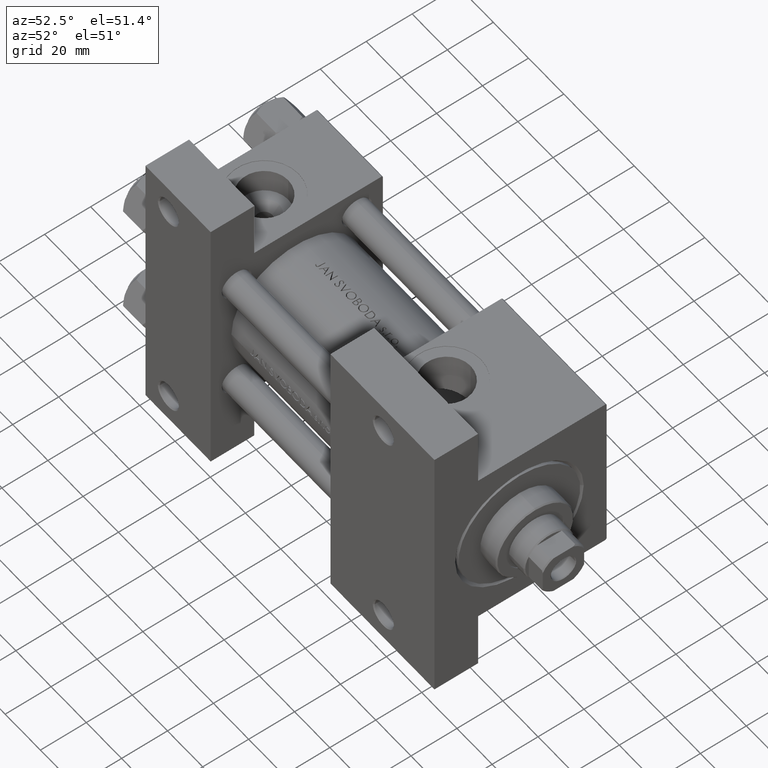
[diagram: clean part render]
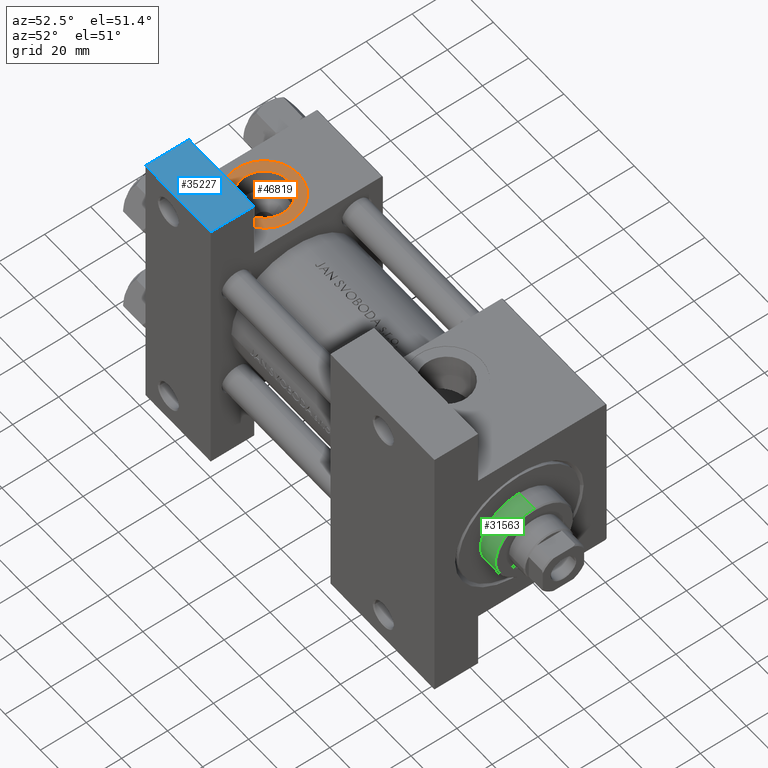
[diagram: same view with three faces highlighted in distinct colors, each labeled with its STEP entity id]
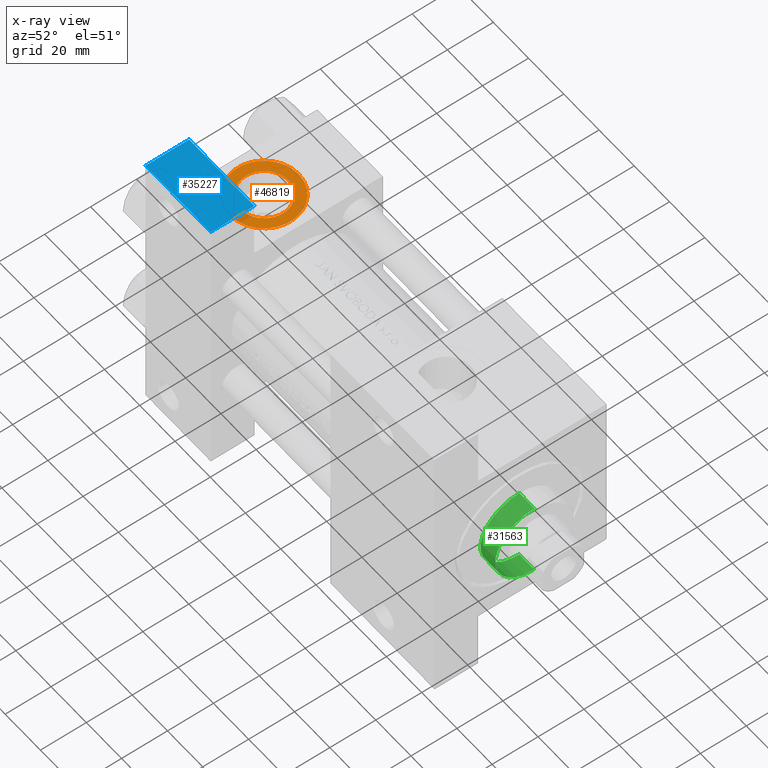
[diagram: x-ray of the same camera — body ghosted, the three highlighted faces saturated]
A machine part, auxiliary view with three faces highlighted in distinct colors.
The next image is the same camera in x-ray (body ghosted, the three faces saturated) — at least one of them is partly hidden behind the body in this view.
Their STEP definitions:

[orange] entity #46819 — the highlighted planar face has unit normal (0, -0, 1).
#68 = CIRCLE ( 'NONE', #15204, 15.00000000000000178 ) ;
#725 = FACE_BOUND ( 'NONE', #13833, .T. ) ;
#2262 = CARTESIAN_POINT ( 'NONE',  ( 18.50000000000000000, -37.30000000000000426, -3.452099717193846907E-15 ) ) ;
#2402 = AXIS2_PLACEMENT_3D ( 'NONE', #17625, #44022, #12925 ) ;
#2506 = DIRECTION ( 'NONE',  ( 0.000000000000000000, -1.000000000000000000, -8.673617379884036705E-17 ) ) ;
#2558 = EDGE_CURVE ( 'NONE', #29060, #11060, #15094, .T. ) ;
#3024 = ORIENTED_EDGE ( 'NONE', *, *, #4389, .F. ) ;
#3940 = VERTEX_POINT ( 'NONE', #21422 ) ;
#4389 = EDGE_CURVE ( 'NONE', #11060, #29060, #29479, .T. ) ;
#4718 = DIRECTION ( 'NONE',  ( 0.000000000000000000, -1.000000000000000000, -8.673617379884036705E-17 ) ) ;
#5708 = EDGE_CURVE ( 'NONE', #45179, #3940, #68, .T. ) ;
#6317 = AXIS2_PLACEMENT_3D ( 'NONE', #30194, #22962, #18986 ) ;
#7500 = CARTESIAN_POINT ( 'NONE',  ( 18.50000000000000000, -37.30000000000000426, -10.48000000000000398 ) ) ;
#8196 = DIRECTION ( 'NONE',  ( 0.000000000000000000, 8.673617379884036705E-17, -1.000000000000000000 ) ) ;
#11060 = VERTEX_POINT ( 'NONE', #32679 ) ;
#12925 = DIRECTION ( 'NONE',  ( 0.000000000000000000, 0.000000000000000000, -1.000000000000000000 ) ) ;
#13833 = EDGE_LOOP ( 'NONE', ( #16336, #3024 ) ) ;
#15068 = DIRECTION ( 'NONE',  ( 0.000000000000000000, -1.000000000000000000, -8.673617379884036705E-17 ) ) ;
#15094 = CIRCLE ( 'NONE', #6317, 10.48000000000000043 ) ;
#15204 = AXIS2_PLACEMENT_3D ( 'NONE', #2262, #2506, #16975 ) ;
#16336 = ORIENTED_EDGE ( 'NONE', *, *, #2558, .F. ) ;
#16975 = DIRECTION ( 'NONE',  ( 0.000000000000000000, 0.000000000000000000, -1.000000000000000000 ) ) ;
#17625 = CARTESIAN_POINT ( 'NONE',  ( 18.50000000000000000, -37.30000000000000426, -3.452099717193846907E-15 ) ) ;
#18986 = DIRECTION ( 'NONE',  ( 0.000000000000000000, 0.000000000000000000, -1.000000000000000000 ) ) ;
#21422 = CARTESIAN_POINT ( 'NONE',  ( 18.50000000000000355, -37.30000000000000426, 14.99999999999999822 ) ) ;
#22962 = DIRECTION ( 'NONE',  ( 0.000000000000000000, -1.000000000000000000, -8.673617379884036705E-17 ) ) ;
#23499 = AXIS2_PLACEMENT_3D ( 'NONE', #49169, #15068, #30258 ) ;
#23589 = ORIENTED_EDGE ( 'NONE', *, *, #5708, .T. ) ;
#23894 = CARTESIAN_POINT ( 'NONE',  ( 18.50000000000000000, -37.30000000000000426, -3.452099717193846907E-15 ) ) ;
#27140 = PLANE ( 'NONE',  #35621 ) ;
#29060 = VERTEX_POINT ( 'NONE', #7500 ) ;
#29479 = CIRCLE ( 'NONE', #2402, 10.48000000000000043 ) ;
#30194 = CARTESIAN_POINT ( 'NONE',  ( 18.50000000000000000, -37.30000000000000426, -3.452099717193846907E-15 ) ) ;
#30258 = DIRECTION ( 'NONE',  ( 0.000000000000000000, 0.000000000000000000, -1.000000000000000000 ) ) ;
#32679 = CARTESIAN_POINT ( 'NONE',  ( 18.50000000000000000, -37.30000000000000426, 10.47999999999999687 ) ) ;
#35621 = AXIS2_PLACEMENT_3D ( 'NONE', #23894, #4718, #8196 ) ;
#40155 = CARTESIAN_POINT ( 'NONE',  ( 18.50000000000000000, -37.30000000000000426, -15.00000000000000533 ) ) ;
#40159 = EDGE_LOOP ( 'NONE', ( #23589, #43355 ) ) ;
#41304 = EDGE_CURVE ( 'NONE', #3940, #45179, #44170, .T. ) ;
#42312 = FACE_OUTER_BOUND ( 'NONE', #40159, .T. ) ;
#43355 = ORIENTED_EDGE ( 'NONE', *, *, #41304, .T. ) ;
#44022 = DIRECTION ( 'NONE',  ( 0.000000000000000000, -1.000000000000000000, -8.673617379884036705E-17 ) ) ;
#44170 = CIRCLE ( 'NONE', #23499, 15.00000000000000178 ) ;
#45179 = VERTEX_POINT ( 'NONE', #40155 ) ;
#46819 = ADVANCED_FACE ( 'NONE', ( #725, #42312 ), #27140, .T. ) ;
#49169 = CARTESIAN_POINT ( 'NONE',  ( 18.50000000000000000, -37.30000000000000426, -3.452099717193846907E-15 ) ) ;

[blue] entity #35227 — the highlighted planar face has unit normal (0, 0, 1).
#740 = LINE ( 'NONE', #31132, #9272 ) ;
#859 = CARTESIAN_POINT ( 'NONE',  ( 3.977209754999747208E-16, -63.50000000000000000, -18.50000000000000355 ) ) ;
#1169 = DIRECTION ( 'NONE',  ( 1.000000000000000000, 0.000000000000000000, 0.000000000000000000 ) ) ;
#4410 = CARTESIAN_POINT ( 'NONE',  ( 3.977209754999747208E-16, -63.50000000000000000, -18.50000000000000355 ) ) ;
#4667 = DIRECTION ( 'NONE',  ( 0.000000000000000000, -1.734723475976806848E-16, -1.000000000000000000 ) ) ;
#4921 = VERTEX_POINT ( 'NONE', #34137 ) ;
#5648 = DIRECTION ( 'NONE',  ( 0.000000000000000000, -1.734723475976806848E-16, -1.000000000000000000 ) ) ;
#6434 = ORIENTED_EDGE ( 'NONE', *, *, #23281, .T. ) ;
#8564 = VECTOR ( 'NONE', #1169, 1000.000000000000000 ) ;
#9272 = VECTOR ( 'NONE', #42582, 1000.000000000000000 ) ;
#11639 = LINE ( 'NONE', #4410, #8564 ) ;
#12696 = CARTESIAN_POINT ( 'NONE',  ( 37.00000000000000000, -63.50000000000000000, -18.50000000000000355 ) ) ;
#18210 = CARTESIAN_POINT ( 'NONE',  ( 3.977209754999747208E-16, -63.49999999999998579, 26.72167621838007889 ) ) ;
#21007 = AXIS2_PLACEMENT_3D ( 'NONE', #18210, #25433, #48577 ) ;
#22459 = ORIENTED_EDGE ( 'NONE', *, *, #47005, .F. ) ;
#22944 = EDGE_CURVE ( 'NONE', #43676, #4921, #740, .T. ) ;
#23281 = EDGE_CURVE ( 'NONE', #47295, #4921, #23604, .T. ) ;
#23604 = LINE ( 'NONE', #38790, #32318 ) ;
#25433 = DIRECTION ( 'NONE',  ( 0.000000000000000000, -1.000000000000000000, 1.734723475976806848E-16 ) ) ;
#25736 = ORIENTED_EDGE ( 'NONE', *, *, #22944, .F. ) ;
#26083 = EDGE_LOOP ( 'NONE', ( #22459, #6434, #25736, #35880 ) ) ;
#28575 = CARTESIAN_POINT ( 'NONE',  ( 37.00000000000000000, -63.49999999999998579, 26.72167621838007889 ) ) ;
#28809 = LINE ( 'NONE', #28575, #36102 ) ;
#31132 = CARTESIAN_POINT ( 'NONE',  ( 3.977209754999747208E-16, -63.50000000000000000, -37.49999999999999289 ) ) ;
#32318 = VECTOR ( 'NONE', #4667, 1000.000000000000000 ) ;
#33697 = CARTESIAN_POINT ( 'NONE',  ( 37.00000000000000000, -63.50000000000000000, -37.49999999999999289 ) ) ;
#34137 = CARTESIAN_POINT ( 'NONE',  ( 3.977209754999747208E-16, -63.50000000000000000, -37.49999999999999289 ) ) ;
#35227 = ADVANCED_FACE ( 'NONE', ( #37624 ), #37379, .T. ) ;
#35880 = ORIENTED_EDGE ( 'NONE', *, *, #38455, .F. ) ;
#36102 = VECTOR ( 'NONE', #5648, 1000.000000000000000 ) ;
#37379 = PLANE ( 'NONE',  #21007 ) ;
#37624 = FACE_OUTER_BOUND ( 'NONE', #26083, .T. ) ;
#38455 = EDGE_CURVE ( 'NONE', #47604, #43676, #28809, .T. ) ;
#38790 = CARTESIAN_POINT ( 'NONE',  ( 3.977209754999747208E-16, -63.49999999999998579, 26.72167621838007889 ) ) ;
#42582 = DIRECTION ( 'NONE',  ( -1.000000000000000000, -0.000000000000000000, -0.000000000000000000 ) ) ;
#43676 = VERTEX_POINT ( 'NONE', #33697 ) ;
#47005 = EDGE_CURVE ( 'NONE', #47295, #47604, #11639, .T. ) ;
#47295 = VERTEX_POINT ( 'NONE', #859 ) ;
#47604 = VERTEX_POINT ( 'NONE', #12696 ) ;
#48577 = DIRECTION ( 'NONE',  ( 0.000000000000000000, -1.734723475976806848E-16, -1.000000000000000000 ) ) ;

[green] entity #31563 — the highlighted cylindrical surface (partial cylindrical patch) has radius 17 mm, axis along (-1, -0, 0).
#2491 = CYLINDRICAL_SURFACE ( 'NONE', #26490, 17.00000000000000000 ) ;
#2739 = DIRECTION ( 'NONE',  ( -1.000000000000000000, 0.000000000000000000, 0.000000000000000000 ) ) ;
#3098 = DIRECTION ( 'NONE',  ( -0.000000000000000000, -0.000000000000000000, -1.000000000000000000 ) ) ;
#9716 = CARTESIAN_POINT ( 'NONE',  ( 0.000000000000000000, 0.000000000000000000, 37.69999999999999574 ) ) ;
#10615 = CIRCLE ( 'NONE', #41668, 17.00000000000000000 ) ;
#10660 = DIRECTION ( 'NONE',  ( 0.000000000000000000, 0.000000000000000000, 1.000000000000000000 ) ) ;
#11716 = CARTESIAN_POINT ( 'NONE',  ( -17.00000000000000000, 0.000000000000000000, 28.69999999999999929 ) ) ;
#11779 = EDGE_CURVE ( 'NONE', #40445, #37156, #40220, .T. ) ;
#13514 = ORIENTED_EDGE ( 'NONE', *, *, #42947, .T. ) ;
#13707 = DIRECTION ( 'NONE',  ( 1.000000000000000000, 0.000000000000000000, 0.000000000000000000 ) ) ;
#13994 = EDGE_CURVE ( 'NONE', #37156, #48026, #10615, .T. ) ;
#16130 = DIRECTION ( 'NONE',  ( -0.000000000000000000, -0.000000000000000000, -1.000000000000000000 ) ) ;
#16425 = EDGE_LOOP ( 'NONE', ( #47781, #13514, #30283, #37131 ) ) ;
#17932 = CARTESIAN_POINT ( 'NONE',  ( 0.000000000000000000, 0.000000000000000000, 37.19999999999999574 ) ) ;
#20119 = LINE ( 'NONE', #27845, #22041 ) ;
#21136 = DIRECTION ( 'NONE',  ( 1.000000000000000000, 0.000000000000000000, 0.000000000000000000 ) ) ;
#21667 = FACE_OUTER_BOUND ( 'NONE', #16425, .T. ) ;
#22041 = VECTOR ( 'NONE', #16130, 1000.000000000000000 ) ;
#24249 = EDGE_CURVE ( 'NONE', #45780, #48026, #20119, .T. ) ;
#25119 = CARTESIAN_POINT ( 'NONE',  ( 0.000000000000000000, 0.000000000000000000, 28.69999999999999929 ) ) ;
#26490 = AXIS2_PLACEMENT_3D ( 'NONE', #9716, #28908, #2739 ) ;
#27250 = CARTESIAN_POINT ( 'NONE',  ( -17.00000000000000000, 0.000000000000000000, 37.19999999999999574 ) ) ;
#27845 = CARTESIAN_POINT ( 'NONE',  ( 17.00000000000000000, 2.081899558550500280E-15, 37.69999999999999574 ) ) ;
#28908 = DIRECTION ( 'NONE',  ( -0.000000000000000000, -0.000000000000000000, -1.000000000000000000 ) ) ;
#30283 = ORIENTED_EDGE ( 'NONE', *, *, #11779, .T. ) ;
#31563 = ADVANCED_FACE ( 'NONE', ( #21667 ), #2491, .T. ) ;
#34670 = CIRCLE ( 'NONE', #48183, 17.00000000000000000 ) ;
#35288 = CARTESIAN_POINT ( 'NONE',  ( -17.00000000000000000, 0.000000000000000000, 37.69999999999999574 ) ) ;
#36039 = VECTOR ( 'NONE', #3098, 1000.000000000000000 ) ;
#37131 = ORIENTED_EDGE ( 'NONE', *, *, #13994, .T. ) ;
#37156 = VERTEX_POINT ( 'NONE', #11716 ) ;
#38079 = CARTESIAN_POINT ( 'NONE',  ( 17.00000000000000000, 2.081899558550500280E-15, 37.19999999999999574 ) ) ;
#40220 = LINE ( 'NONE', #35288, #36039 ) ;
#40445 = VERTEX_POINT ( 'NONE', #27250 ) ;
#41668 = AXIS2_PLACEMENT_3D ( 'NONE', #25119, #10660, #21136 ) ;
#42947 = EDGE_CURVE ( 'NONE', #45780, #40445, #34670, .T. ) ;
#45780 = VERTEX_POINT ( 'NONE', #38079 ) ;
#46668 = CARTESIAN_POINT ( 'NONE',  ( 17.00000000000000000, 2.081899558550500280E-15, 28.69999999999999929 ) ) ;
#47781 = ORIENTED_EDGE ( 'NONE', *, *, #24249, .F. ) ;
#48026 = VERTEX_POINT ( 'NONE', #46668 ) ;
#48056 = DIRECTION ( 'NONE',  ( 0.000000000000000000, 0.000000000000000000, -1.000000000000000000 ) ) ;
#48183 = AXIS2_PLACEMENT_3D ( 'NONE', #17932, #48056, #13707 ) ;